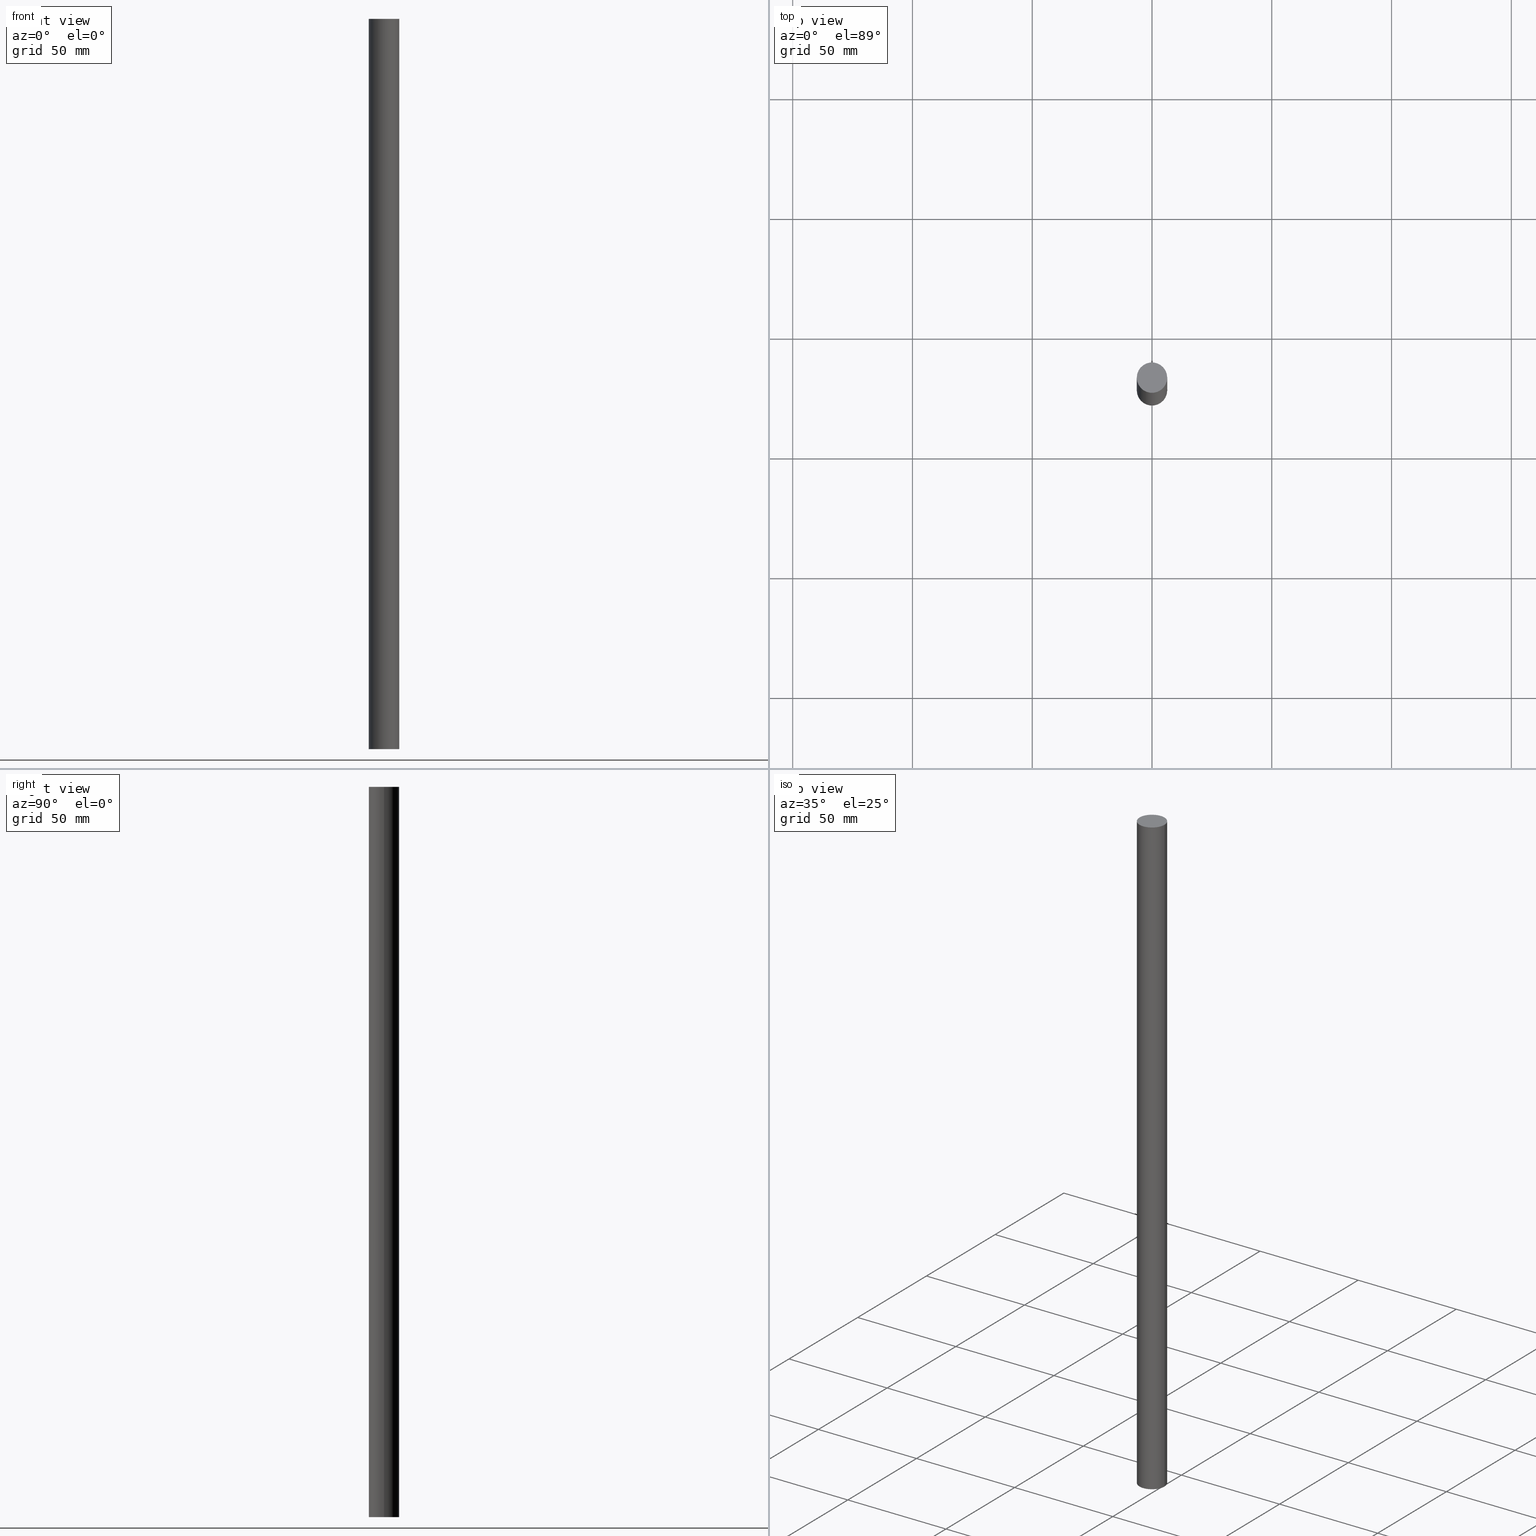
[diagram: canonical four-view strip — front | top / right | iso, engineering-drawing reading convention]
A machine part, canonical four-view strip (front | top / right | iso — engineering-drawing reading convention). The complete STEP part file that produces these views, byte-faithful:
ISO-10303-21;
HEADER;
FILE_DESCRIPTION (( 'STEP AP214' ),
    '1' );
FILE_NAME ('ShaftRailAssembly_E505CB8B28.step',
    '2022-07-25T17:55:55',
    ( '' ),
    ( '' ),
    'SwSTEP 2.0',
    'SolidWorks 2019',
    '' );
FILE_SCHEMA (( 'AUTOMOTIVE_DESIGN' ));
ENDSEC;

DATA;
#1 = CARTESIAN_POINT ( 'NONE',  ( 0.000000000000000000, 1.125000000000000222, -11.99999999999999822 ) ) ;
#2 =( NAMED_UNIT ( * ) SI_UNIT ( $, .STERADIAN. ) SOLID_ANGLE_UNIT ( ) );
#3 =( NAMED_UNIT ( * ) PLANE_ANGLE_UNIT ( ) SI_UNIT ( $, .RADIAN. ) );
#4 = SHAPE_DEFINITION_REPRESENTATION ( #28, #43 ) ;
#5 = CIRCLE ( 'NONE', #188, 0.2500000000000001110 ) ;
#6 = DIRECTION ( 'NONE',  ( 0.000000000000000000, 0.000000000000000000, 1.000000000000000000 ) ) ;
#7 = SHAPE_DEFINITION_REPRESENTATION ( #35, #216 ) ;
#8 = CARTESIAN_POINT ( 'NONE',  ( 0.000000000000000000, 1.125000000000000222, -11.99999999999999822 ) ) ;
#9 = AXIS2_PLACEMENT_3D ( 'NONE', #27, #141, #70 ) ;
#10 = VECTOR ( 'NONE', #46, 39.37007874015748143 ) ;
#11 = SURFACE_SIDE_STYLE ('',( #209 ) ) ;
#12 = AXIS2_PLACEMENT_3D ( 'NONE', #195, #6, #180 ) ;
#13 =( NAMED_UNIT ( * ) PLANE_ANGLE_UNIT ( ) SI_UNIT ( $, .RADIAN. ) );
#14 = UNCERTAINTY_MEASURE_WITH_UNIT (LENGTH_MEASURE( 1.000000000000000082E-05 ), #111, 'distance_accuracy_value', 'NONE');
#15 = PRESENTATION_STYLE_ASSIGNMENT (( #59 ) ) ;
#16 = AXIS2_PLACEMENT_3D ( 'NONE', #1, #241, #34 ) ;
#17 =( NAMED_UNIT ( * ) SI_UNIT ( $, .STERADIAN. ) SOLID_ANGLE_UNIT ( ) );
#18 = UNCERTAINTY_MEASURE_WITH_UNIT (LENGTH_MEASURE( 1.000000000000000082E-05 ), #107, 'distance_accuracy_value', 'NONE');
#19 = EDGE_LOOP ( 'NONE', ( #82, #170 ) ) ;
#20 = SURFACE_SIDE_STYLE ('',( #126 ) ) ;
#21 = EDGE_CURVE ( 'NONE', #65, #189, #235, .T. ) ;
#22 = DIRECTION ( 'NONE',  ( 0.000000000000000000, 0.000000000000000000, 1.000000000000000000 ) ) ;
#23 = FILL_AREA_STYLE_COLOUR ( '', #78 ) ;
#24 = CARTESIAN_POINT ( 'NONE',  ( 0.000000000000000000, 1.125000000000000222, -11.99999999999999822 ) ) ;
#25 =( NAMED_UNIT ( * ) SI_UNIT ( $, .STERADIAN. ) SOLID_ANGLE_UNIT ( ) );
#26 =( LENGTH_UNIT ( ) NAMED_UNIT ( * ) SI_UNIT ( $, .METRE. ) );
#27 = CARTESIAN_POINT ( 'NONE',  ( 0.000000000000000000, 1.125000000000000222, 0.000000000000000000 ) ) ;
#28 = PRODUCT_DEFINITION_SHAPE ( 'NONE', 'NONE',  #114 ) ;
#29 =( NAMED_UNIT ( * ) PLANE_ANGLE_UNIT ( ) SI_UNIT ( $, .RADIAN. ) );
#30 = DIMENSIONAL_EXPONENTS ( 1.000000000000000000, 0.000000000000000000, 0.000000000000000000, 0.000000000000000000, 0.000000000000000000, 0.000000000000000000, 0.000000000000000000 ) ;
#31 = DIRECTION ( 'NONE',  ( 0.000000000000000000, 0.000000000000000000, 1.000000000000000000 ) ) ;
#32 = PRODUCT_DEFINITION_SHAPE ( 'NONE', 'NONE',  #276 ) ;
#33 = DIMENSIONAL_EXPONENTS ( 1.000000000000000000, 0.000000000000000000, 0.000000000000000000, 0.000000000000000000, 0.000000000000000000, 0.000000000000000000, 0.000000000000000000 ) ;
#34 = DIRECTION ( 'NONE',  ( 1.000000000000000000, 0.000000000000000000, 0.000000000000000000 ) ) ;
#35 = PRODUCT_DEFINITION_SHAPE ( 'NONE', 'NONE',  #67 ) ;
#36 = ADVANCED_FACE ( 'NONE', ( #217 ), #254, .T. ) ;
#37 =( LENGTH_UNIT ( ) NAMED_UNIT ( * ) SI_UNIT ( $, .METRE. ) );
#38 = PRODUCT_DEFINITION_CONTEXT ( 'detailed design', #133, 'design' ) ;
#39 = AXIS2_PLACEMENT_3D ( 'NONE', #159, #31, #68 ) ;
#40 = DIRECTION ( 'NONE',  ( 1.000000000000000000, 0.000000000000000000, -0.000000000000000000 ) ) ;
#41 = FILL_AREA_STYLE ('',( #23 ) ) ;
#42 = UNCERTAINTY_MEASURE_WITH_UNIT (LENGTH_MEASURE( 1.000000000000000082E-05 ), #62, 'distance_accuracy_value', 'NONE');
#43 = SHAPE_REPRESENTATION ( 'ShaftRailAssembly_E505CB8B28', ( #205, #137 ), #175 ) ;
#44 =( LENGTH_UNIT ( ) NAMED_UNIT ( * ) SI_UNIT ( $, .METRE. ) );
#45 =( NAMED_UNIT ( * ) SI_UNIT ( $, .STERADIAN. ) SOLID_ANGLE_UNIT ( ) );
#46 = DIRECTION ( 'NONE',  ( 0.000000000000000000, 0.000000000000000000, 1.000000000000000000 ) ) ;
#47 = DIRECTION ( 'NONE',  ( 1.000000000000000000, 0.000000000000000000, 0.000000000000000000 ) ) ;
#48 = SURFACE_STYLE_USAGE ( .BOTH. , #51 ) ;
#49 = MECHANICAL_DESIGN_GEOMETRIC_PRESENTATION_REPRESENTATION (  '', ( #113 ), #116 ) ;
#50 = CARTESIAN_POINT ( 'NONE',  ( -0.2500000000000001110, 1.125000000000000222, -11.99999999999999822 ) ) ;
#51 = SURFACE_SIDE_STYLE ('',( #185 ) ) ;
#52 = DIRECTION ( 'NONE',  ( 0.000000000000000000, 0.000000000000000000, 1.000000000000000000 ) ) ;
#53 = PRESENTATION_LAYER_ASSIGNMENT (  '', '', ( #161 ) ) ;
#54 = DIMENSIONAL_EXPONENTS ( 1.000000000000000000, 0.000000000000000000, 0.000000000000000000, 0.000000000000000000, 0.000000000000000000, 0.000000000000000000, 0.000000000000000000 ) ;
#55 = DIRECTION ( 'NONE',  ( 0.000000000000000000, 0.000000000000000000, 1.000000000000000000 ) ) ;
#56 = PRODUCT ( 'f9VzpqQCin_CADModel_0', 'f9VzpqQCin_CADModel_0', '', ( #118 ) ) ;
#57 = DIRECTION ( 'NONE',  ( 1.000000000000000000, 0.000000000000000000, 0.000000000000000000 ) ) ;
#58 = PRESENTATION_STYLE_ASSIGNMENT (( #187 ) ) ;
#59 = SURFACE_STYLE_USAGE ( .BOTH. , #11 ) ;
#60 = AXIS2_PLACEMENT_3D ( 'NONE', #24, #163, #91 ) ;
#61 = EDGE_CURVE ( 'NONE', #125, #214, #260, .T. ) ;
#62 =( CONVERSION_BASED_UNIT ( 'INCH', #249 ) LENGTH_UNIT ( ) NAMED_UNIT ( #183 ) );
#63 = ORIENTED_EDGE ( 'NONE', *, *, #178, .T. ) ;
#64 =( NAMED_UNIT ( * ) PLANE_ANGLE_UNIT ( ) SI_UNIT ( $, .RADIAN. ) );
#65 = VERTEX_POINT ( 'NONE', #255 ) ;
#66 =( NAMED_UNIT ( * ) PLANE_ANGLE_UNIT ( ) SI_UNIT ( $, .RADIAN. ) );
#67 = PRODUCT_DEFINITION ( 'UNKNOWN', '', #139, #246 ) ;
#68 = DIRECTION ( 'NONE',  ( 1.000000000000000000, 0.000000000000000000, 0.000000000000000000 ) ) ;
#69 = PRESENTATION_LAYER_ASSIGNMENT (  '', '', ( #86 ) ) ;
#70 = DIRECTION ( 'NONE',  ( 1.000000000000000000, 0.000000000000000000, 0.000000000000000000 ) ) ;
#71 = PRODUCT_RELATED_PRODUCT_CATEGORY ( 'part', '', ( #266 ) ) ;
#72 = APPLICATION_PROTOCOL_DEFINITION ( 'draft international standard', 'automotive_design', 1998, #103 ) ;
#73 = DIMENSIONAL_EXPONENTS ( 1.000000000000000000, 0.000000000000000000, 0.000000000000000000, 0.000000000000000000, 0.000000000000000000, 0.000000000000000000, 0.000000000000000000 ) ;
#74 =( GEOMETRIC_REPRESENTATION_CONTEXT ( 3 ) GLOBAL_UNCERTAINTY_ASSIGNED_CONTEXT ( ( #14 ) ) GLOBAL_UNIT_ASSIGNED_CONTEXT ( ( #111, #66, #17 ) ) REPRESENTATION_CONTEXT ( 'NONE', 'WORKASPACE' ) );
#75 =( NAMED_UNIT ( * ) SI_UNIT ( $, .STERADIAN. ) SOLID_ANGLE_UNIT ( ) );
#76 = UNCERTAINTY_MEASURE_WITH_UNIT (LENGTH_MEASURE( 1.000000000000000082E-05 ), #215, 'distance_accuracy_value', 'NONE');
#77 = ORIENTED_EDGE ( 'NONE', *, *, #61, .F. ) ;
#78 = COLOUR_RGB ( '',0.8980392156862745390, 0.9176470588235293713, 0.9294117647058823817 ) ;
#79 = EDGE_CURVE ( 'NONE', #65, #125, #5, .T. ) ;
#80 = PRESENTATION_STYLE_ASSIGNMENT (( #233 ) ) ;
#81 = CARTESIAN_POINT ( 'NONE',  ( 0.000000000000000000, 0.000000000000000000, 0.000000000000000000 ) ) ;
#82 = ORIENTED_EDGE ( 'NONE', *, *, #79, .F. ) ;
#83 = ORIENTED_EDGE ( 'NONE', *, *, #178, .F. ) ;
#84 = DIRECTION ( 'NONE',  ( 1.000000000000000000, 0.000000000000000000, 0.000000000000000000 ) ) ;
#85 = CIRCLE ( 'NONE', #60, 0.2500000000000001110 ) ;
#86 = STYLED_ITEM ( 'NONE', ( #80 ), #124 ) ;
#87 = ORIENTED_EDGE ( 'NONE', *, *, #61, .T. ) ;
#88 = CARTESIAN_POINT ( 'NONE',  ( 0.000000000000000000, 1.125000000000000222, 0.000000000000000000 ) ) ;
#89 = APPLICATION_CONTEXT ( 'automotive_design' ) ;
#90 = SURFACE_STYLE_FILL_AREA ( #41 ) ;
#91 = DIRECTION ( 'NONE',  ( 1.000000000000000000, 0.000000000000000000, 0.000000000000000000 ) ) ;
#92 =( LENGTH_UNIT ( ) NAMED_UNIT ( * ) SI_UNIT ( $, .METRE. ) );
#93 =( GEOMETRIC_REPRESENTATION_CONTEXT ( 3 ) GLOBAL_UNCERTAINTY_ASSIGNED_CONTEXT ( ( #42 ) ) GLOBAL_UNIT_ASSIGNED_CONTEXT ( ( #62, #29, #25 ) ) REPRESENTATION_CONTEXT ( 'NONE', 'WORKASPACE' ) );
#94 = CARTESIAN_POINT ( 'NONE',  ( 0.000000000000000000, 0.000000000000000000, 0.000000000000000000 ) ) ;
#95 = DIMENSIONAL_EXPONENTS ( 1.000000000000000000, 0.000000000000000000, 0.000000000000000000, 0.000000000000000000, 0.000000000000000000, 0.000000000000000000, 0.000000000000000000 ) ;
#96 =( NAMED_UNIT ( * ) SI_UNIT ( $, .STERADIAN. ) SOLID_ANGLE_UNIT ( ) );
#97 = STYLED_ITEM ( 'NONE', ( #253 ), #226 ) ;
#98 = CARTESIAN_POINT ( 'NONE',  ( -0.2500000000000001110, 1.125000000000000222, 0.000000000000000000 ) ) ;
#99 = DIRECTION ( 'NONE',  ( 0.000000000000000000, 0.000000000000000000, 1.000000000000000000 ) ) ;
#100 = PRODUCT_RELATED_PRODUCT_CATEGORY ( 'part', '', ( #142 ) ) ;
#101 = FILL_AREA_STYLE ('',( #227 ) ) ;
#102 = PRODUCT_DEFINITION_CONTEXT ( 'detailed design', #103, 'design' ) ;
#103 = APPLICATION_CONTEXT ( 'automotive_design' ) ;
#104 = LENGTH_MEASURE_WITH_UNIT ( LENGTH_MEASURE( 0.02539999999999999897 ), #37 );
#105 = FILL_AREA_STYLE_COLOUR ( '', #140 ) ;
#106 =( GEOMETRIC_REPRESENTATION_CONTEXT ( 3 ) GLOBAL_UNCERTAINTY_ASSIGNED_CONTEXT ( ( #109 ) ) GLOBAL_UNIT_ASSIGNED_CONTEXT ( ( #197, #3, #45 ) ) REPRESENTATION_CONTEXT ( 'NONE', 'WORKASPACE' ) );
#107 =( CONVERSION_BASED_UNIT ( 'INCH', #218 ) LENGTH_UNIT ( ) NAMED_UNIT ( #54 ) );
#108 = DIRECTION ( 'NONE',  ( 1.000000000000000000, 0.000000000000000000, 0.000000000000000000 ) ) ;
#109 = UNCERTAINTY_MEASURE_WITH_UNIT (LENGTH_MEASURE( 1.000000000000000082E-05 ), #197, 'distance_accuracy_value', 'NONE');
#110 = ORIENTED_EDGE ( 'NONE', *, *, #79, .T. ) ;
#111 =( CONVERSION_BASED_UNIT ( 'INCH', #131 ) LENGTH_UNIT ( ) NAMED_UNIT ( #33 ) );
#112 = CARTESIAN_POINT ( 'NONE',  ( -0.2500000000000001110, 1.125000000000000222, -11.99999999999999822 ) ) ;
#113 = STYLED_ITEM ( 'NONE', ( #264 ), #221 ) ;
#114 = PRODUCT_DEFINITION ( 'UNKNOWN', '', #145, #102 ) ;
#115 = DIRECTION ( 'NONE',  ( 1.000000000000000000, 0.000000000000000000, 0.000000000000000000 ) ) ;
#116 =( GEOMETRIC_REPRESENTATION_CONTEXT ( 3 ) GLOBAL_UNCERTAINTY_ASSIGNED_CONTEXT ( ( #232 ) ) GLOBAL_UNIT_ASSIGNED_CONTEXT ( ( #262, #162, #240 ) ) REPRESENTATION_CONTEXT ( 'NONE', 'WORKASPACE' ) );
#117 = CONTEXT_DEPENDENT_SHAPE_REPRESENTATION ( #256, #32 ) ;
#118 = PRODUCT_CONTEXT ( 'NONE', #146, 'mechanical' ) ;
#119 = CARTESIAN_POINT ( 'NONE',  ( 0.000000000000000000, 1.125000000000000222, -11.99999999999999822 ) ) ;
#120 = DIMENSIONAL_EXPONENTS ( 1.000000000000000000, 0.000000000000000000, 0.000000000000000000, 0.000000000000000000, 0.000000000000000000, 0.000000000000000000, 0.000000000000000000 ) ;
#121 = APPLICATION_CONTEXT ( 'automotive_design' ) ;
#122 = AXIS2_PLACEMENT_3D ( 'NONE', #148, #231, #47 ) ;
#123 = AXIS2_PLACEMENT_3D ( 'NONE', #88, #55, #57 ) ;
#124 = ADVANCED_FACE ( 'NONE', ( #151 ), #147, .T. ) ;
#125 = VERTEX_POINT ( 'NONE', #112 ) ;
#126 = SURFACE_STYLE_FILL_AREA ( #250 ) ;
#127 = SURFACE_STYLE_USAGE ( .BOTH. , #237 ) ;
#128 = UNCERTAINTY_MEASURE_WITH_UNIT (LENGTH_MEASURE( 1.000000000000000082E-05 ), #244, 'distance_accuracy_value', 'NONE');
#129 = COLOUR_RGB ( '',0.7764705882352941346, 0.7764705882352941346, 0.8156862745098039102 ) ;
#130 = VECTOR ( 'NONE', #52, 39.37007874015748143 ) ;
#131 = LENGTH_MEASURE_WITH_UNIT ( LENGTH_MEASURE( 0.02539999999999999897 ), #92 );
#132 = LENGTH_MEASURE_WITH_UNIT ( LENGTH_MEASURE( 0.02539999999999999897 ), #44 );
#133 = APPLICATION_CONTEXT ( 'automotive_design' ) ;
#134 =( GEOMETRIC_REPRESENTATION_CONTEXT ( 3 ) GLOBAL_UNCERTAINTY_ASSIGNED_CONTEXT ( ( #76 ) ) GLOBAL_UNIT_ASSIGNED_CONTEXT ( ( #215, #64, #2 ) ) REPRESENTATION_CONTEXT ( 'NONE', 'WORKASPACE' ) );
#135 = CLOSED_SHELL ( 'NONE', ( #124, #245, #221, #36 ) ) ;
#136 = APPLICATION_PROTOCOL_DEFINITION ( 'draft international standard', 'automotive_design', 1998, #146 ) ;
#137 = AXIS2_PLACEMENT_3D ( 'NONE', #192, #272, #234 ) ;
#138 =( CONVERSION_BASED_UNIT ( 'INCH', #220 ) LENGTH_UNIT ( ) NAMED_UNIT ( #73 ) );
#139 = PRODUCT_DEFINITION_FORMATION_WITH_SPECIFIED_SOURCE ( 'ANY', '', #56, .NOT_KNOWN. ) ;
#140 = COLOUR_RGB ( '',0.7764705882352941346, 0.7764705882352941346, 0.8156862745098039102 ) ;
#141 = DIRECTION ( 'NONE',  ( 0.000000000000000000, 0.000000000000000000, 1.000000000000000000 ) ) ;
#142 = PRODUCT ( 'f9VzpqQCin_CADModel_0', 'f9VzpqQCin_CADModel_0', '', ( #158 ) ) ;
#143 = DIRECTION ( 'NONE',  ( 1.000000000000000000, 0.000000000000000000, 0.000000000000000000 ) ) ;
#144 = AXIS2_PLACEMENT_3D ( 'NONE', #165, #99, #143 ) ;
#145 = PRODUCT_DEFINITION_FORMATION_WITH_SPECIFIED_SOURCE ( 'ANY', '', #266, .NOT_KNOWN. ) ;
#146 = APPLICATION_CONTEXT ( 'automotive_design' ) ;
#147 = CYLINDRICAL_SURFACE ( 'NONE', #16, 0.2500000000000001110 ) ;
#148 = CARTESIAN_POINT ( 'NONE',  ( 0.000000000000000000, 0.000000000000000000, 0.000000000000000000 ) ) ;
#149 = CARTESIAN_POINT ( 'NONE',  ( 0.2500000000000001110, 1.125000000000000222, -11.99999999999999822 ) ) ;
#150 =( GEOMETRIC_REPRESENTATION_CONTEXT ( 3 ) GLOBAL_UNCERTAINTY_ASSIGNED_CONTEXT ( ( #128 ) ) GLOBAL_UNIT_ASSIGNED_CONTEXT ( ( #244, #13, #75 ) ) REPRESENTATION_CONTEXT ( 'NONE', 'WORKASPACE' ) );
#151 = FACE_OUTER_BOUND ( 'NONE', #174, .T. ) ;
#152 = EDGE_CURVE ( 'NONE', #125, #65, #85, .T. ) ;
#153 = SHAPE_REPRESENTATION_RELATIONSHIP ( 'NONE' , 'NONE' ,  #216, #226 ) ;
#154 = SURFACE_STYLE_FILL_AREA ( #230 ) ;
#155 = PLANE ( 'NONE',  #181 ) ;
#156 =( LENGTH_UNIT ( ) NAMED_UNIT ( * ) SI_UNIT ( $, .METRE. ) );
#157 = CARTESIAN_POINT ( 'NONE',  ( 0.2500000000000001110, 1.125000000000000222, 0.000000000000000000 ) ) ;
#158 = PRODUCT_CONTEXT ( 'NONE', #121, 'mechanical' ) ;
#159 = CARTESIAN_POINT ( 'NONE',  ( 0.000000000000000000, 0.000000000000000000, 0.000000000000000000 ) ) ;
#160 = PRODUCT_CONTEXT ( 'NONE', #89, 'mechanical' ) ;
#161 = STYLED_ITEM ( 'NONE', ( #247 ), #36 ) ;
#162 =( NAMED_UNIT ( * ) PLANE_ANGLE_UNIT ( ) SI_UNIT ( $, .RADIAN. ) );
#163 = DIRECTION ( 'NONE',  ( 0.000000000000000000, 0.000000000000000000, 1.000000000000000000 ) ) ;
#164 = MECHANICAL_DESIGN_GEOMETRIC_PRESENTATION_REPRESENTATION (  '', ( #97 ), #74 ) ;
#165 = CARTESIAN_POINT ( 'NONE',  ( 0.000000000000000000, 1.125000000000000222, -11.99999999999999822 ) ) ;
#166 = FILL_AREA_STYLE_COLOUR ( '', #129 ) ;
#167 = DIRECTION ( 'NONE',  ( 0.000000000000000000, 0.000000000000000000, 1.000000000000000000 ) ) ;
#168 = MECHANICAL_DESIGN_GEOMETRIC_PRESENTATION_REPRESENTATION (  '', ( #86 ), #134 ) ;
#169 = SURFACE_SIDE_STYLE ('',( #154 ) ) ;
#170 = ORIENTED_EDGE ( 'NONE', *, *, #152, .F. ) ;
#171 = PRODUCT_DEFINITION ( 'UNKNOWN', '', #203, #38 ) ;
#172 = ORIENTED_EDGE ( 'NONE', *, *, #21, .T. ) ;
#173 =( NAMED_UNIT ( * ) SI_UNIT ( $, .STERADIAN. ) SOLID_ANGLE_UNIT ( ) );
#174 = EDGE_LOOP ( 'NONE', ( #110, #87, #252, #193 ) ) ;
#175 =( GEOMETRIC_REPRESENTATION_CONTEXT ( 3 ) GLOBAL_UNCERTAINTY_ASSIGNED_CONTEXT ( ( #273 ) ) GLOBAL_UNIT_ASSIGNED_CONTEXT ( ( #138, #200, #96 ) ) REPRESENTATION_CONTEXT ( 'NONE', 'WORKASPACE' ) );
#176 = EDGE_LOOP ( 'NONE', ( #77, #274, #172, #83 ) ) ;
#177 = FACE_OUTER_BOUND ( 'NONE', #19, .T. ) ;
#178 = EDGE_CURVE ( 'NONE', #214, #189, #242, .T. ) ;
#179 = APPLICATION_CONTEXT ( 'automotive_design' ) ;
#180 = DIRECTION ( 'NONE',  ( 1.000000000000000000, 0.000000000000000000, -0.000000000000000000 ) ) ;
#181 = AXIS2_PLACEMENT_3D ( 'NONE', #8, #167, #40 ) ;
#182 = APPLICATION_PROTOCOL_DEFINITION ( 'draft international standard', 'automotive_design', 1998, #133 ) ;
#183 = DIMENSIONAL_EXPONENTS ( 1.000000000000000000, 0.000000000000000000, 0.000000000000000000, 0.000000000000000000, 0.000000000000000000, 0.000000000000000000, 0.000000000000000000 ) ;
#184 = APPLICATION_PROTOCOL_DEFINITION ( 'draft international standard', 'automotive_design', 1998, #121 ) ;
#185 = SURFACE_STYLE_FILL_AREA ( #223 ) ;
#186 = STYLED_ITEM ( 'NONE', ( #58 ), #270 ) ;
#187 = SURFACE_STYLE_USAGE ( .BOTH. , #204 ) ;
#188 = AXIS2_PLACEMENT_3D ( 'NONE', #119, #199, #84 ) ;
#189 = VERTEX_POINT ( 'NONE', #157 ) ;
#190 = COLOUR_RGB ( '',0.7764705882352941346, 0.7764705882352941346, 0.8156862745098039102 ) ;
#191 = SURFACE_STYLE_USAGE ( .BOTH. , #169 ) ;
#192 = CARTESIAN_POINT ( 'NONE',  ( 0.000000000000000000, 0.000000000000000000, 0.000000000000000000 ) ) ;
#193 = ORIENTED_EDGE ( 'NONE', *, *, #21, .F. ) ;
#194 = FILL_AREA_STYLE_COLOUR ( '', #207 ) ;
#195 = CARTESIAN_POINT ( 'NONE',  ( 0.000000000000000000, 1.125000000000000222, 0.000000000000000000 ) ) ;
#196 = LENGTH_MEASURE_WITH_UNIT ( LENGTH_MEASURE( 0.02539999999999999897 ), #26 );
#197 =( CONVERSION_BASED_UNIT ( 'INCH', #251 ) LENGTH_UNIT ( ) NAMED_UNIT ( #120 ) );
#198 = PRESENTATION_LAYER_ASSIGNMENT (  '', '', ( #186 ) ) ;
#199 = DIRECTION ( 'NONE',  ( 0.000000000000000000, 0.000000000000000000, 1.000000000000000000 ) ) ;
#200 =( NAMED_UNIT ( * ) PLANE_ANGLE_UNIT ( ) SI_UNIT ( $, .RADIAN. ) );
#201 = EDGE_CURVE ( 'NONE', #189, #214, #211, .T. ) ;
#202 = COLOUR_RGB ( '',0.8980392156862745390, 0.9176470588235293713, 0.9294117647058823817 ) ;
#203 = PRODUCT_DEFINITION_FORMATION_WITH_SPECIFIED_SOURCE ( 'ANY', '', #142, .NOT_KNOWN. ) ;
#204 = SURFACE_SIDE_STYLE ('',( #208 ) ) ;
#205 = AXIS2_PLACEMENT_3D ( 'NONE', #94, #261, #115 ) ;
#206 =( LENGTH_UNIT ( ) NAMED_UNIT ( * ) SI_UNIT ( $, .METRE. ) );
#207 = COLOUR_RGB ( '',0.7764705882352941346, 0.7764705882352941346, 0.8156862745098039102 ) ;
#208 = SURFACE_STYLE_FILL_AREA ( #101 ) ;
#209 = SURFACE_STYLE_FILL_AREA ( #229 ) ;
#210 =( NAMED_UNIT ( * ) PLANE_ANGLE_UNIT ( ) SI_UNIT ( $, .RADIAN. ) );
#211 = CIRCLE ( 'NONE', #9, 0.2500000000000001110 ) ;
#212 = MECHANICAL_DESIGN_GEOMETRIC_PRESENTATION_REPRESENTATION (  '', ( #161 ), #93 ) ;
#213 = EDGE_LOOP ( 'NONE', ( #271, #63 ) ) ;
#214 = VERTEX_POINT ( 'NONE', #98 ) ;
#215 =( CONVERSION_BASED_UNIT ( 'INCH', #132 ) LENGTH_UNIT ( ) NAMED_UNIT ( #239 ) );
#216 = SHAPE_REPRESENTATION ( 'f9VzpqQCin_CADModel_0', ( #122 ), #106 ) ;
#217 = FACE_OUTER_BOUND ( 'NONE', #213, .T. ) ;
#218 = LENGTH_MEASURE_WITH_UNIT ( LENGTH_MEASURE( 0.02539999999999999897 ), #206 );
#219 = STYLED_ITEM ( 'NONE', ( #15 ), #245 ) ;
#220 = LENGTH_MEASURE_WITH_UNIT ( LENGTH_MEASURE( 0.02539999999999999897 ), #224 );
#221 = ADVANCED_FACE ( 'NONE', ( #177 ), #155, .F. ) ;
#222 = APPLICATION_PROTOCOL_DEFINITION ( 'draft international standard', 'automotive_design', 1998, #89 ) ;
#223 = FILL_AREA_STYLE ('',( #236 ) ) ;
#224 =( LENGTH_UNIT ( ) NAMED_UNIT ( * ) SI_UNIT ( $, .METRE. ) );
#225 =( GEOMETRIC_REPRESENTATION_CONTEXT ( 3 ) GLOBAL_UNCERTAINTY_ASSIGNED_CONTEXT ( ( #18 ) ) GLOBAL_UNIT_ASSIGNED_CONTEXT ( ( #107, #210, #173 ) ) REPRESENTATION_CONTEXT ( 'NONE', 'WORKASPACE' ) );
#226 = ADVANCED_BREP_SHAPE_REPRESENTATION ( '', ( #270, #122 ), #106 ) ;
#227 = FILL_AREA_STYLE_COLOUR ( '', #202 ) ;
#228 = MECHANICAL_DESIGN_GEOMETRIC_PRESENTATION_REPRESENTATION (  '', ( #186 ), #225 ) ;
#229 = FILL_AREA_STYLE ('',( #166 ) ) ;
#230 = FILL_AREA_STYLE ('',( #105 ) ) ;
#231 = DIRECTION ( 'NONE',  ( 0.000000000000000000, 0.000000000000000000, 1.000000000000000000 ) ) ;
#232 = UNCERTAINTY_MEASURE_WITH_UNIT (LENGTH_MEASURE( 1.000000000000000082E-05 ), #262, 'distance_accuracy_value', 'NONE');
#233 = SURFACE_STYLE_USAGE ( .BOTH. , #20 ) ;
#234 = DIRECTION ( 'NONE',  ( 1.000000000000000000, 0.000000000000000000, 0.000000000000000000 ) ) ;
#235 = LINE ( 'NONE', #149, #10 ) ;
#236 = FILL_AREA_STYLE_COLOUR ( '', #190 ) ;
#237 = SURFACE_SIDE_STYLE ('',( #90 ) ) ;
#238 = ITEM_DEFINED_TRANSFORMATION ( 'NONE', 'NONE', #137,  #122 ) ;
#239 = DIMENSIONAL_EXPONENTS ( 1.000000000000000000, 0.000000000000000000, 0.000000000000000000, 0.000000000000000000, 0.000000000000000000, 0.000000000000000000, 0.000000000000000000 ) ;
#240 =( NAMED_UNIT ( * ) SI_UNIT ( $, .STERADIAN. ) SOLID_ANGLE_UNIT ( ) );
#241 = DIRECTION ( 'NONE',  ( 0.000000000000000000, 0.000000000000000000, 1.000000000000000000 ) ) ;
#242 = CIRCLE ( 'NONE', #123, 0.2500000000000001110 ) ;
#243 = CYLINDRICAL_SURFACE ( 'NONE', #144, 0.2500000000000001110 ) ;
#244 =( CONVERSION_BASED_UNIT ( 'INCH', #104 ) LENGTH_UNIT ( ) NAMED_UNIT ( #95 ) );
#245 = ADVANCED_FACE ( 'NONE', ( #248 ), #243, .T. ) ;
#246 = PRODUCT_DEFINITION_CONTEXT ( 'detailed design', #179, 'design' ) ;
#247 = PRESENTATION_STYLE_ASSIGNMENT (( #191 ) ) ;
#248 = FACE_OUTER_BOUND ( 'NONE', #176, .T. ) ;
#249 = LENGTH_MEASURE_WITH_UNIT ( LENGTH_MEASURE( 0.02539999999999999897 ), #269 );
#250 = FILL_AREA_STYLE ('',( #194 ) ) ;
#251 = LENGTH_MEASURE_WITH_UNIT ( LENGTH_MEASURE( 0.02539999999999999897 ), #156 );
#252 = ORIENTED_EDGE ( 'NONE', *, *, #201, .F. ) ;
#253 = PRESENTATION_STYLE_ASSIGNMENT (( #127 ) ) ;
#254 = PLANE ( 'NONE',  #12 ) ;
#255 = CARTESIAN_POINT ( 'NONE',  ( 0.2500000000000001110, 1.125000000000000222, -11.99999999999999822 ) ) ;
#256 =( REPRESENTATION_RELATIONSHIP ('NONE','NONE', #43, #216 ) REPRESENTATION_RELATIONSHIP_WITH_TRANSFORMATION ( #238 )SHAPE_REPRESENTATION_RELATIONSHIP( ) );
#257 = PRODUCT_RELATED_PRODUCT_CATEGORY ( 'part', '', ( #56 ) ) ;
#258 = AXIS2_PLACEMENT_3D ( 'NONE', #81, #22, #108 ) ;
#259 = APPLICATION_PROTOCOL_DEFINITION ( 'draft international standard', 'automotive_design', 1998, #179 ) ;
#260 = LINE ( 'NONE', #50, #130 ) ;
#261 = DIRECTION ( 'NONE',  ( 0.000000000000000000, 0.000000000000000000, 1.000000000000000000 ) ) ;
#262 =( CONVERSION_BASED_UNIT ( 'INCH', #196 ) LENGTH_UNIT ( ) NAMED_UNIT ( #30 ) );
#263 = PRESENTATION_LAYER_ASSIGNMENT (  '', '', ( #219 ) ) ;
#264 = PRESENTATION_STYLE_ASSIGNMENT (( #48 ) ) ;
#265 = PRODUCT_DEFINITION_SHAPE ( 'NONE', 'NONE',  #171 ) ;
#266 = PRODUCT ( 'ShaftRailAssembly_E505CB8B28', 'ShaftRailAssembly_E505CB8B28', '', ( #160 ) ) ;
#267 = MECHANICAL_DESIGN_GEOMETRIC_PRESENTATION_REPRESENTATION (  '', ( #219 ), #150 ) ;
#268 = PRESENTATION_LAYER_ASSIGNMENT (  '', '', ( #97 ) ) ;
#269 =( LENGTH_UNIT ( ) NAMED_UNIT ( * ) SI_UNIT ( $, .METRE. ) );
#270 = MANIFOLD_SOLID_BREP ( 'S0_a_shaft-1/S0_a_shaft-1-solid1', #135 ) ;
#271 = ORIENTED_EDGE ( 'NONE', *, *, #201, .T. ) ;
#272 = DIRECTION ( 'NONE',  ( 0.000000000000000000, 0.000000000000000000, 1.000000000000000000 ) ) ;
#273 = UNCERTAINTY_MEASURE_WITH_UNIT (LENGTH_MEASURE( 1.000000000000000082E-05 ), #138, 'distance_accuracy_value', 'NONE');
#274 = ORIENTED_EDGE ( 'NONE', *, *, #152, .T. ) ;
#275 = PRESENTATION_LAYER_ASSIGNMENT (  '', '', ( #113 ) ) ;
#276 = NEXT_ASSEMBLY_USAGE_OCCURRENCE ( 'NAUO1', ' ', ' ', #114, #67, $ ) ;
ENDSEC;
END-ISO-10303-21;
